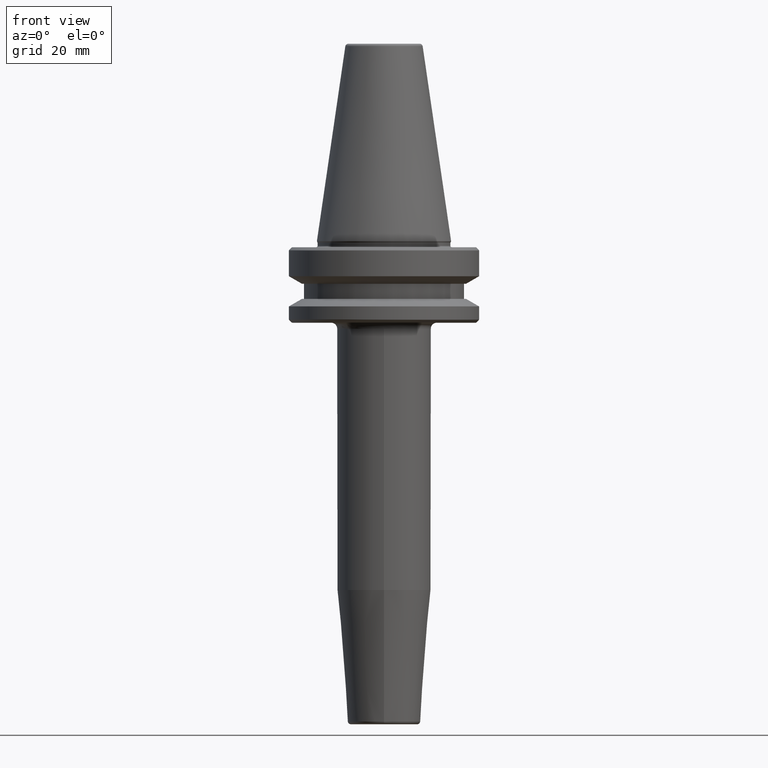
[diagram: clean part render]
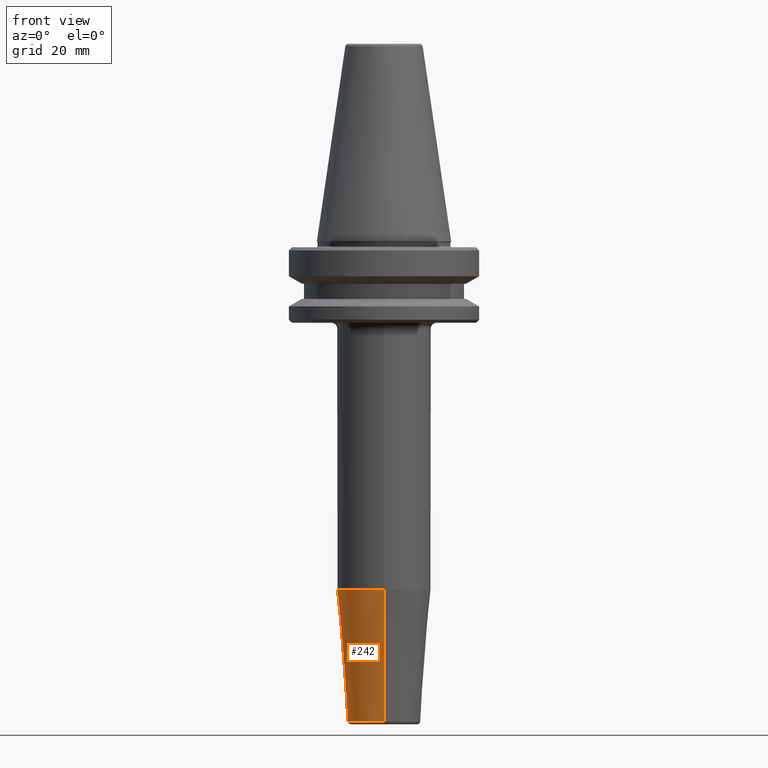
[diagram: same view with one face highlighted and labeled with its STEP entity id]
A machine part, front view. The second image highlights one B-rep face of the part: STEP entity #242.
In plain terms, the highlighted conical surface has half-angle 4.5 deg.
Its self-contained STEP definition (entity closure, byte-faithful):
#2 = ORIENTED_EDGE ( 'NONE', *, *, #151, .F. ) ;
#38 = VECTOR ( 'NONE', #354, 1000.000000000000100 ) ;
#53 = VERTEX_POINT ( 'NONE', #437 ) ;
#59 = CIRCLE ( 'NONE', #858, 15.49999999999999300 ) ;
#81 = CARTESIAN_POINT ( 'NONE',  ( 1.898202538678396800E-015, 15.50000000000000000, -115.5282834233806400 ) ) ;
#100 = AXIS2_PLACEMENT_3D ( 'NONE', #918, #149, #1233 ) ;
#106 = ORIENTED_EDGE ( 'NONE', *, *, #945, .T. ) ;
#149 = DIRECTION ( 'NONE',  ( 0.0000000000000000000, -7.550453949630298400E-017, 1.000000000000000000 ) ) ;
#151 = EDGE_CURVE ( 'NONE', #196, #1165, #573, .T. ) ;
#196 = VERTEX_POINT ( 'NONE', #922 ) ;
#239 = EDGE_CURVE ( 'NONE', #1165, #1093, #820, .T. ) ;
#242 = ADVANCED_FACE ( 'NONE', ( #521 ), #843, .T. ) ;
#265 = VECTOR ( 'NONE', #332, 1000.000000000000100 ) ;
#281 = DIRECTION ( 'NONE',  ( 0.0000000000000000000, 1.000000000000000000, 0.0000000000000000000 ) ) ;
#332 = DIRECTION ( 'NONE',  ( 9.608468044708423300E-018, 0.07845909572783112100, 0.9969173337331289600 ) ) ;
#354 = DIRECTION ( 'NONE',  ( 0.0000000000000000000, -0.07845909572783124600, 0.9969173337331289600 ) ) ;
#359 = CARTESIAN_POINT ( 'NONE',  ( 0.0000000000000000000, -12.07252684207489000, -159.0784590957278200 ) ) ;
#383 = CARTESIAN_POINT ( 'NONE',  ( 0.0000000000000000000, 6.684287272280548800E-015, -115.5282834233806400 ) ) ;
#437 = CARTESIAN_POINT ( 'NONE',  ( 0.0000000000000000000, -15.49999999999998600, -115.5282834233806400 ) ) ;
#447 = CARTESIAN_POINT ( 'NONE',  ( 1.478458135476752900E-015, 12.07252684207490900, -159.0784590957278200 ) ) ;
#493 = DIRECTION ( 'NONE',  ( 0.0000000000000000000, 1.000000000000000000, 0.0000000000000000000 ) ) ;
#513 = ORIENTED_EDGE ( 'NONE', *, *, #545, .T. ) ;
#521 = FACE_OUTER_BOUND ( 'NONE', #1246, .T. ) ;
#545 = EDGE_CURVE ( 'NONE', #53, #1093, #59, .T. ) ;
#573 = CIRCLE ( 'NONE', #650, 12.07252684207490000 ) ;
#650 = AXIS2_PLACEMENT_3D ( 'NONE', #936, #1033, #281 ) ;
#686 = CARTESIAN_POINT ( 'NONE',  ( 0.0000000000000000000, 12.07252684207491100, -159.0784590957278200 ) ) ;
#820 = LINE ( 'NONE', #447, #265 ) ;
#843 = CONICAL_SURFACE ( 'NONE', #100, 12.07252684207490000, 0.07853981633973103300 ) ;
#858 = AXIS2_PLACEMENT_3D ( 'NONE', #383, #1090, #493 ) ;
#918 = CARTESIAN_POINT ( 'NONE',  ( 0.0000000000000000000, 9.972523231404220500E-015, -159.0784590957278200 ) ) ;
#922 = CARTESIAN_POINT ( 'NONE',  ( 1.478458135476753500E-015, -12.07252684207489100, -159.0784590957278200 ) ) ;
#936 = CARTESIAN_POINT ( 'NONE',  ( 0.0000000000000000000, 9.972523231404220500E-015, -159.0784590957278200 ) ) ;
#945 = EDGE_CURVE ( 'NONE', #196, #53, #1117, .T. ) ;
#1033 = DIRECTION ( 'NONE',  ( -0.0000000000000000000, 7.550453949630298400E-017, -1.000000000000000000 ) ) ;
#1090 = DIRECTION ( 'NONE',  ( -0.0000000000000000000, 7.550453949630298400E-017, -1.000000000000000000 ) ) ;
#1093 = VERTEX_POINT ( 'NONE', #81 ) ;
#1117 = LINE ( 'NONE', #359, #38 ) ;
#1124 = ORIENTED_EDGE ( 'NONE', *, *, #239, .F. ) ;
#1165 = VERTEX_POINT ( 'NONE', #686 ) ;
#1233 = DIRECTION ( 'NONE',  ( 0.0000000000000000000, -1.000000000000000000, 0.0000000000000000000 ) ) ;
#1246 = EDGE_LOOP ( 'NONE', ( #1124, #2, #106, #513 ) ) ;